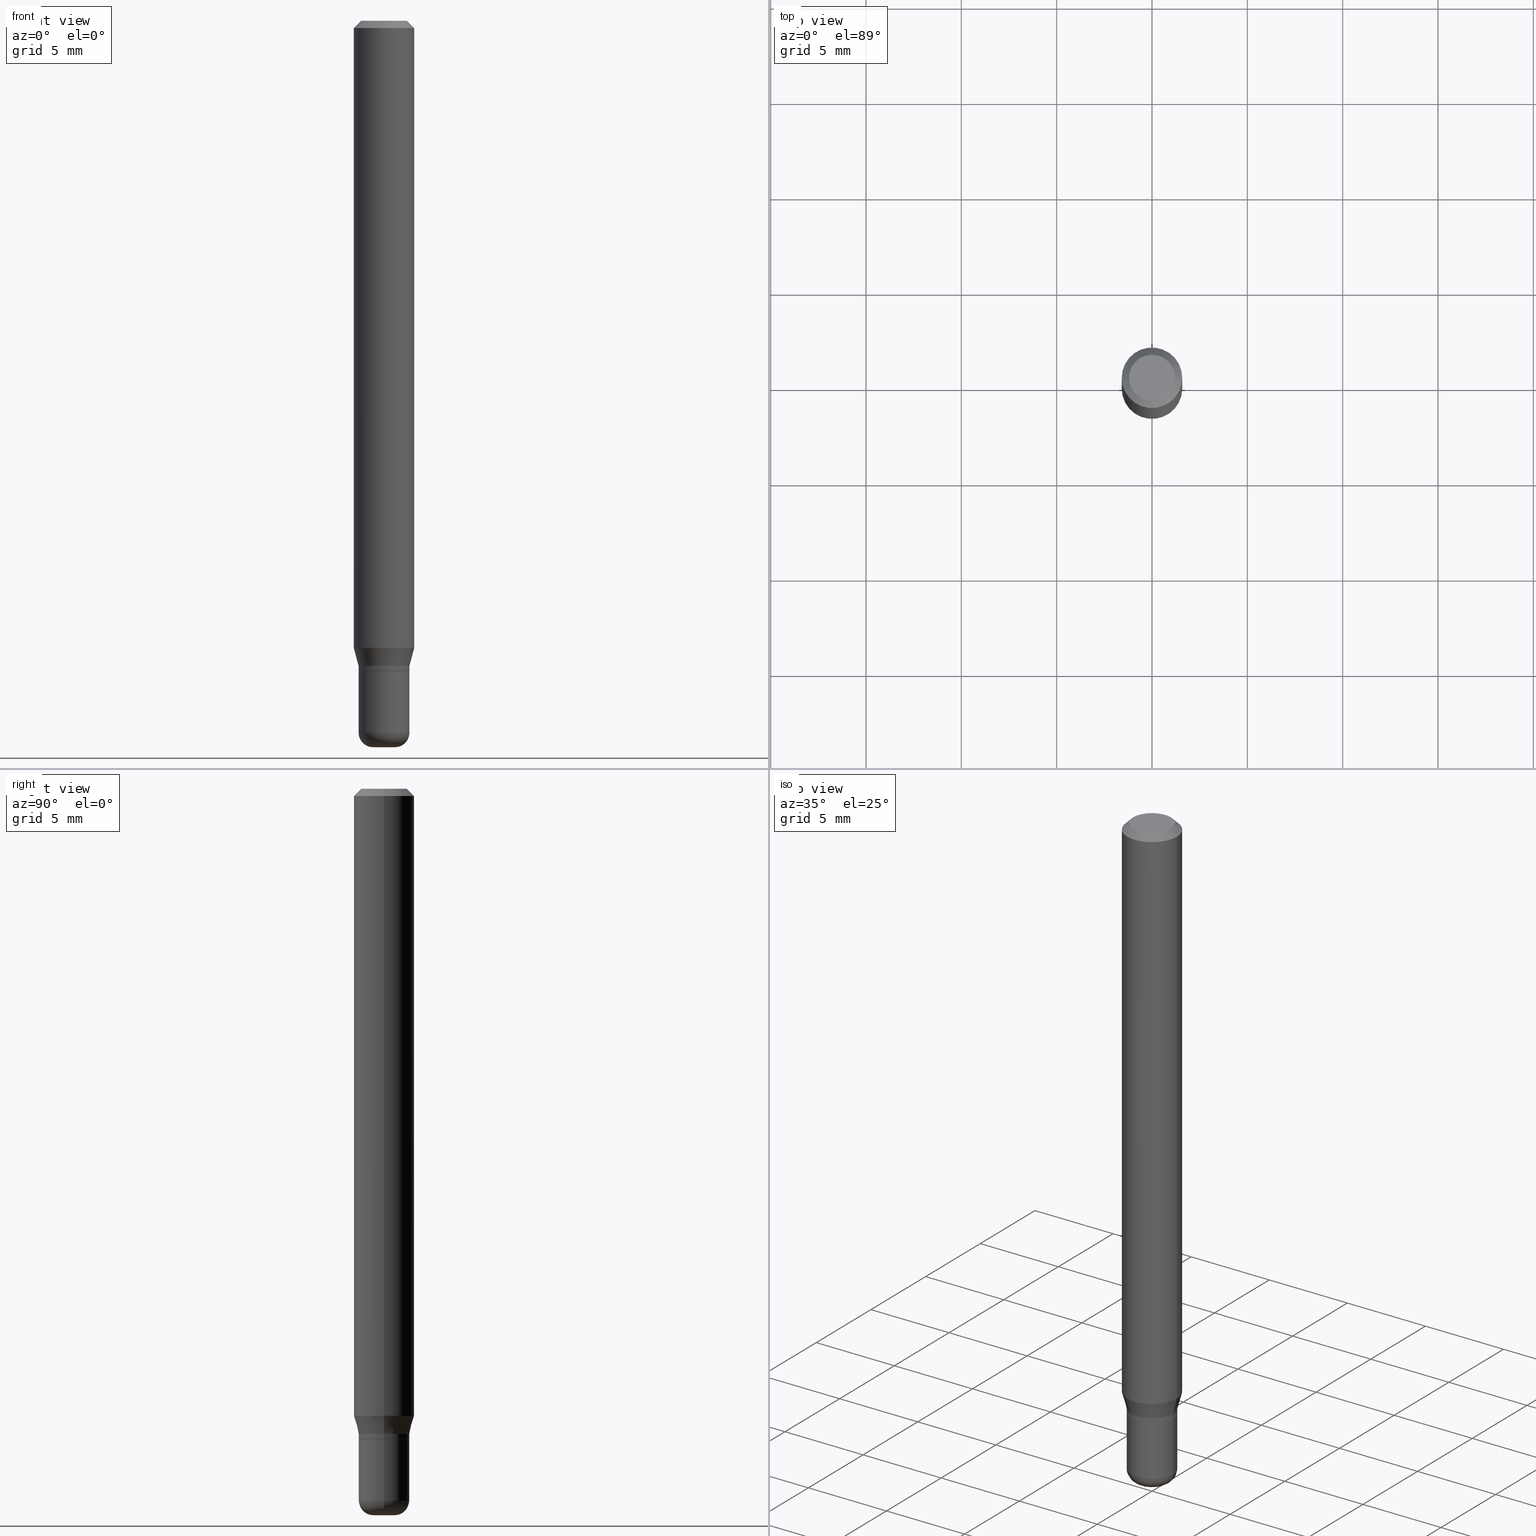
[diagram: canonical four-view strip — front | top / right | iso, engineering-drawing reading convention]
A machine part, canonical four-view strip (front | top / right | iso — engineering-drawing reading convention). The complete STEP part file that produces these views, byte-faithful:
ISO-10303-21;
HEADER;
FILE_DESCRIPTION (( 'STEP AP203' ),
    '1' );
FILE_NAME ('09234.STEP',
    '2024-02-29T23:46:39',
    ( '' ),
    ( '' ),
    'SwSTEP 2.0',
    'SolidWorks 2023',
    '' );
FILE_SCHEMA (( 'CONFIG_CONTROL_DESIGN' ));
ENDSEC;

DATA;
#1 =( CONVERSION_BASED_UNIT ( 'INCH', #270 ) LENGTH_UNIT ( ) NAMED_UNIT ( #393 ) );
#2 = ORIENTED_EDGE ( 'NONE', *, *, #513, .T. ) ;
#3 = VERTEX_POINT ( 'NONE', #451 ) ;
#4 = COORDINATED_UNIVERSAL_TIME_OFFSET ( 5, 0, .BEHIND. ) ;
#5 = AXIS2_PLACEMENT_3D ( 'NONE', #125, #397, #447 ) ;
#6 = VECTOR ( 'NONE', #514, 39.37007874015748143 ) ;
#7 = VERTEX_POINT ( 'NONE', #53 ) ;
#8 = DIRECTION ( 'NONE',  ( -2.445468806185136597E-29, 3.491481338843145583E-15, 1.000000000000000000 ) ) ;
#9 = VERTEX_POINT ( 'NONE', #137 ) ;
#10 = FACE_OUTER_BOUND ( 'NONE', #470, .T. ) ;
#11 = EDGE_CURVE ( 'NONE', #277, #3, #293, .T. ) ;
#12 = CIRCLE ( 'NONE', #60, 0.05250000000000007438 ) ;
#13 = ORIENTED_EDGE ( 'NONE', *, *, #227, .T. ) ;
#14 = FACE_OUTER_BOUND ( 'NONE', #317, .T. ) ;
#15 = DIRECTION ( 'NONE',  ( 1.000000000000000000, -6.982962677686266711E-15, 4.852736867747365086E-29 ) ) ;
#16 = AXIS2_PLACEMENT_3D ( 'NONE', #237, #26, #309 ) ;
#17 = AXIS2_PLACEMENT_3D ( 'NONE', #219, #375, #15 ) ;
#18 = VERTEX_POINT ( 'NONE', #504 ) ;
#19 = CARTESIAN_POINT ( 'NONE',  ( 0.06250000000000000000, -4.364351673553916694E-16, 3.047610484872459871E-30 ) ) ;
#20 = DIRECTION ( 'NONE',  ( 0.7071067811864267805, -2.468850131080992517E-15, 0.7071067811866682540 ) ) ;
#21 = CC_DESIGN_PERSON_AND_ORGANIZATION_ASSIGNMENT ( #109, #163, ( #220 ) ) ;
#22 = ORIENTED_EDGE ( 'NONE', *, *, #110, .T. ) ;
#23 = DIRECTION ( 'NONE',  ( 1.000000000000000000, 0.000000000000000000, 0.000000000000000000 ) ) ;
#24 = AXIS2_PLACEMENT_3D ( 'NONE', #360, #196, #421 ) ;
#25 = AXIS2_PLACEMENT_3D ( 'NONE', #389, #343, #508 ) ;
#26 = DIRECTION ( 'NONE',  ( 2.445468806185136597E-29, -3.491481338843145583E-15, -1.000000000000000000 ) ) ;
#27 = DIRECTION ( 'NONE',  ( 1.000000000000000000, -6.982962677686262766E-15, 0.000000000000000000 ) ) ;
#28 = DIRECTION ( 'NONE',  ( -2.445468806185136597E-29, 3.491481338843145583E-15, 1.000000000000000000 ) ) ;
#29 = PERSON_AND_ORGANIZATION ( #339, #378 ) ;
#30 = DIRECTION ( 'NONE',  ( -0.7071067811865479058, 2.468850131082261005E-15, -0.7071067811865471286 ) ) ;
#31 = DATE_AND_TIME ( #516, #335 ) ;
#32 = PLANE ( 'NONE',  #262 ) ;
#33 = VECTOR ( 'NONE', #479, 39.37007874015748143 ) ;
#34 = EDGE_CURVE ( 'NONE', #240, #9, #255, .T. ) ;
#35 = DIRECTION ( 'NONE',  ( 2.438088387897960049E-29, -3.491481338843145188E-15, -1.000000000000000000 ) ) ;
#36 = PERSON_AND_ORGANIZATION_ROLE ( 'classification_officer' ) ;
#37 = ORIENTED_EDGE ( 'NONE', *, *, #299, .T. ) ;
#38 = ORIENTED_EDGE ( 'NONE', *, *, #144, .F. ) ;
#39 = ADVANCED_FACE ( 'NONE', ( #437 ), #86, .T. ) ;
#40 = AXIS2_PLACEMENT_3D ( 'NONE', #340, #142, #99 ) ;
#41 = PRODUCT_DEFINITION ( 'UNKNOWN', '', #220, #217 ) ;
#42 = CARTESIAN_POINT ( 'NONE',  ( 0.02250000000000000264, -5.394338668512660598E-15, -1.500000000000000444 ) ) ;
#43 = PLANE ( 'NONE',  #244 ) ;
#44 = DIRECTION ( 'NONE',  ( 1.000000000000000000, -6.982962677686258033E-15, 0.000000000000000000 ) ) ;
#45 = EDGE_CURVE ( 'NONE', #3, #133, #436, .T. ) ;
#46 = CARTESIAN_POINT ( 'NONE',  ( -0.02249999999999999570, -4.972605452553402518E-15, -1.470000000000000195 ) ) ;
#47 = DIRECTION ( 'NONE',  ( -1.000000000000000000, 6.982962677686266711E-15, 0.000000000000000000 ) ) ;
#48 = ORIENTED_EDGE ( 'NONE', *, *, #506, .T. ) ;
#49 = FACE_OUTER_BOUND ( 'NONE', #296, .T. ) ;
#50 = CC_DESIGN_PERSON_AND_ORGANIZATION_ASSIGNMENT ( #203, #36, ( #148 ) ) ;
#51 = ORIENTED_EDGE ( 'NONE', *, *, #513, .F. ) ;
#52 = ORIENTED_EDGE ( 'NONE', *, *, #195, .F. ) ;
#53 = CARTESIAN_POINT ( 'NONE',  ( -0.04750000000000000749, 3.578768372314221353E-16, 2.731847993664239060E-16 ) ) ;
#54 = APPROVAL_DATE_TIME ( #149, #269 ) ;
#55 = APPLICATION_CONTEXT ( 'configuration controlled 3d designs of mechanical parts and assemblies' ) ;
#56 = ORIENTED_EDGE ( 'NONE', *, *, #403, .T. ) ;
#57 = EDGE_CURVE ( 'NONE', #89, #492, #319, .T. ) ;
#58 = CARTESIAN_POINT ( 'NONE',  ( 0.000000000000000000, 0.000000000000000000, 0.000000000000000000 ) ) ;
#59 = AXIS2_PLACEMENT_3D ( 'NONE', #58, #469, #377 ) ;
#60 = AXIS2_PLACEMENT_3D ( 'NONE', #430, #113, #191 ) ;
#61 = DIRECTION ( 'NONE',  ( 1.000000000000000000, -6.982962677686272233E-15, 0.000000000000000000 ) ) ;
#62 = LINE ( 'NONE', #19, #238 ) ;
#63 = ADVANCED_FACE ( 'NONE', ( #425 ), #68, .T. ) ;
#64 = DIRECTION ( 'NONE',  ( -2.445468806185136597E-29, 3.491481338843145583E-15, 1.000000000000000000 ) ) ;
#65 = COORDINATED_UNIVERSAL_TIME_OFFSET ( 5, 0, .BEHIND. ) ;
#66 = ORIENTED_EDGE ( 'NONE', *, *, #110, .F. ) ;
#67 = EDGE_CURVE ( 'NONE', #492, #157, #197, .T. ) ;
#68 = CYLINDRICAL_SURFACE ( 'NONE', #481, 0.05250000000000005357 ) ;
#69 = VECTOR ( 'NONE', #30, 39.37007874015748143 ) ;
#70 = DIRECTION ( 'NONE',  ( -2.445468806185136597E-29, 3.491481338843145583E-15, 1.000000000000000000 ) ) ;
#71 = CALENDAR_DATE ( 2024, 29, 2 ) ;
#72 = LINE ( 'NONE', #107, #33 ) ;
#73 = ORIENTED_EDGE ( 'NONE', *, *, #506, .F. ) ;
#74 = DATE_AND_TIME ( #312, #349 ) ;
#75 = EDGE_CURVE ( 'NONE', #18, #492, #445, .T. ) ;
#76 = SHAPE_DEFINITION_REPRESENTATION ( #130, #80 ) ;
#77 = ADVANCED_FACE ( 'NONE', ( #276 ), #441, .F. ) ;
#78 = AXIS2_PLACEMENT_3D ( 'NONE', #101, #333, #320 ) ;
#79 = DIRECTION ( 'NONE',  ( 2.438088387897960049E-29, -3.491481338843145188E-15, -1.000000000000000000 ) ) ;
#80 = ADVANCED_BREP_SHAPE_REPRESENTATION ( '09234', ( #151, #495, #307 ), #123 ) ;
#81 = CARTESIAN_POINT ( 'NONE',  ( 3.281819137900453057E-29, -4.685567956727500961E-15, -1.342000000000000082 ) ) ;
#82 = FACE_OUTER_BOUND ( 'NONE', #518, .T. ) ;
#83 = CARTESIAN_POINT ( 'NONE',  ( 3.281819137900453057E-29, -4.685567956727500961E-15, -1.342000000000000082 ) ) ;
#84 = DIRECTION ( 'NONE',  ( 7.105427357601001859E-15, 1.000000000000000000, -3.491481338843145583E-15 ) ) ;
#85 = DIRECTION ( 'NONE',  ( -2.445468806185136877E-29, 3.491481338843145188E-15, 1.000000000000000000 ) ) ;
#86 = CONICAL_SURFACE ( 'NONE', #16, 0.06250000000000000000, 0.7853981633974488341 ) ;
#87 = AXIS2_PLACEMENT_3D ( 'NONE', #81, #404, #440 ) ;
#88 = EDGE_CURVE ( 'NONE', #298, #18, #442, .T. ) ;
#89 = VERTEX_POINT ( 'NONE', #358 ) ;
#90 = EDGE_CURVE ( 'NONE', #289, #3, #409, .T. ) ;
#91 = DIRECTION ( 'NONE',  ( 1.000000000000000000, -6.982962677686265922E-15, 4.876176775795935793E-29 ) ) ;
#92 = AXIS2_PLACEMENT_3D ( 'NONE', #290, #252, #128 ) ;
#93 = ORIENTED_EDGE ( 'NONE', *, *, #406, .T. ) ;
#94 = DIRECTION ( 'NONE',  ( 1.000000000000000000, -6.982962677686260400E-15, 0.000000000000000000 ) ) ;
#95 = ADVANCED_FACE ( 'NONE', ( #154 ), #250, .T. ) ;
#96 = DIRECTION ( 'NONE',  ( -2.445468806185136597E-29, 3.491481338843145583E-15, 1.000000000000000000 ) ) ;
#97 = CARTESIAN_POINT ( 'NONE',  ( 0.05250000000000010908, -5.499083108677954756E-15, -1.470000000000000195 ) ) ;
#98 = APPLICATION_CONTEXT ( 'configuration controlled 3d designs of mechanical parts and assemblies' ) ;
#99 = DIRECTION ( 'NONE',  ( 1.000000000000000000, -6.982962677686274599E-15, 0.000000000000000000 ) ) ;
#100 = PERSON_AND_ORGANIZATION ( #339, #378 ) ;
#101 = CARTESIAN_POINT ( 'NONE',  ( 3.594839145092150820E-29, -5.132477568099424807E-15, -1.470000000000000195 ) ) ;
#102 = CLOSED_SHELL ( 'NONE', ( #126, #334, #484, #266, #284, #478, #391, #39, #234, #77, #259, #140 ) ) ;
#103 = CIRCLE ( 'NONE', #367, 0.04750000000000000749 ) ;
#104 = APPROVAL_PERSON_ORGANIZATION ( #352, #158, #355 ) ;
#105 = ORIENTED_EDGE ( 'NONE', *, *, #67, .T. ) ;
#106 = COORDINATED_UNIVERSAL_TIME_OFFSET ( 5, 0, .BEHIND. ) ;
#107 = CARTESIAN_POINT ( 'NONE',  ( -0.05200000000000005312, -4.316085734132249325E-15, -1.342000000000000082 ) ) ;
#108 = CIRCLE ( 'NONE', #173, 0.02250000000000000264 ) ;
#109 = PERSON_AND_ORGANIZATION ( #339, #378 ) ;
#110 = EDGE_CURVE ( 'NONE', #161, #497, #385, .T. ) ;
#111 = COORDINATED_UNIVERSAL_TIME_OFFSET ( 5, 0, .BEHIND. ) ;
#112 = CARTESIAN_POINT ( 'NONE',  ( 3.666055405785617499E-16, 0.05249999999999530736, -1.342000000000000304 ) ) ;
#113 = DIRECTION ( 'NONE',  ( -2.445468806185136597E-29, 3.491481338843145583E-15, 1.000000000000000000 ) ) ;
#114 = VECTOR ( 'NONE', #202, 39.37007874015748143 ) ;
#115 = EDGE_CURVE ( 'NONE', #497, #298, #304, .T. ) ;
#116 = CONICAL_SURFACE ( 'NONE', #410, 0.06250000000000000000, 0.7853981633974488341 ) ;
#117 = EDGE_LOOP ( 'NONE', ( #485, #56 ) ) ;
#118 = DIRECTION ( 'NONE',  ( 1.000000000000000000, -6.982962677686266711E-15, 0.000000000000000000 ) ) ;
#119 = ORIENTED_EDGE ( 'NONE', *, *, #272, .T. ) ;
#120 = PRODUCT_RELATED_PRODUCT_CATEGORY ( 'detail', '', ( #218 ) ) ;
#121 = DIRECTION ( 'NONE',  ( 1.000000000000000000, -6.982962677686269866E-15, 0.000000000000000000 ) ) ;
#122 = DIRECTION ( 'NONE',  ( 2.445468806185136597E-29, -3.491481338843145583E-15, -1.000000000000000000 ) ) ;
#123 =( GEOMETRIC_REPRESENTATION_CONTEXT ( 3 ) GLOBAL_UNCERTAINTY_ASSIGNED_CONTEXT ( ( #490 ) ) GLOBAL_UNIT_ASSIGNED_CONTEXT ( ( #1, #476, #467 ) ) REPRESENTATION_CONTEXT ( 'NONE', 'WORKASPACE' ) );
#124 = CIRCLE ( 'NONE', #40, 0.03000000000000010991 ) ;
#125 = CARTESIAN_POINT ( 'NONE',  ( 3.281819137900453057E-29, -4.685567956727500961E-15, -1.342000000000000082 ) ) ;
#126 = ADVANCED_FACE ( 'NONE', ( #186 ), #345, .T. ) ;
#127 = CARTESIAN_POINT ( 'NONE',  ( -6.680649051745406845E-45, 9.538196290434862081E-31, 2.731847993664263218E-16 ) ) ;
#128 = DIRECTION ( 'NONE',  ( 1.000000000000000000, -6.982962677686258033E-15, 0.000000000000000000 ) ) ;
#129 = ORIENTED_EDGE ( 'NONE', *, *, #67, .F. ) ;
#130 = PRODUCT_DEFINITION_SHAPE ( 'NONE', 'NONE',  #41 ) ;
#131 = DIRECTION ( 'NONE',  ( -2.445468806185136597E-29, 3.491481338843145583E-15, 1.000000000000000000 ) ) ;
#132 = ORIENTED_EDGE ( 'NONE', *, *, #88, .T. ) ;
#133 = VERTEX_POINT ( 'NONE', #387 ) ;
#134 = ORIENTED_EDGE ( 'NONE', *, *, #299, .F. ) ;
#135 = CARTESIAN_POINT ( 'NONE',  ( 0.000000000000000000, 0.000000000000000000, 0.000000000000000000 ) ) ;
#136 = ADVANCED_FACE ( 'NONE', ( #472 ), #223, .T. ) ;
#137 = CARTESIAN_POINT ( 'NONE',  ( 0.06250000000000000000, -4.888073874380378612E-16, -0.01499999999999970281 ) ) ;
#138 = EDGE_LOOP ( 'NONE', ( #52, #66 ) ) ;
#139 = DIRECTION ( 'NONE',  ( -2.445468806185136597E-29, 3.491481338843145583E-15, 1.000000000000000000 ) ) ;
#140 = ADVANCED_FACE ( 'NONE', ( #379 ), #256, .T. ) ;
#141 = ORIENTED_EDGE ( 'NONE', *, *, #88, .F. ) ;
#142 = DIRECTION ( 'NONE',  ( -6.982962677686266711E-15, -1.000000000000000000, 3.491481338843145583E-15 ) ) ;
#143 = DIRECTION ( 'NONE',  ( -2.445468806185136877E-29, 3.491481338843145188E-15, 1.000000000000000000 ) ) ;
#144 = EDGE_CURVE ( 'NONE', #9, #374, #356, .T. ) ;
#145 = DIRECTION ( 'NONE',  ( -2.445468806185136597E-29, 3.491481338843145583E-15, 1.000000000000000000 ) ) ;
#146 = ORIENTED_EDGE ( 'NONE', *, *, #406, .F. ) ;
#147 = ORIENTED_EDGE ( 'NONE', *, *, #11, .F. ) ;
#148 = SECURITY_CLASSIFICATION ( '', '', #512 ) ;
#149 = DATE_AND_TIME ( #190, #171 ) ;
#150 = MECHANICAL_CONTEXT ( 'NONE', #55, 'mechanical' ) ;
#151 = MANIFOLD_SOLID_BREP ( 'Body-Move/Copy2[1]', #192 ) ;
#152 = PERSON_AND_ORGANIZATION_ROLE ( 'creator' ) ;
#153 = ORIENTED_EDGE ( 'NONE', *, *, #144, .T. ) ;
#154 = FACE_OUTER_BOUND ( 'NONE', #428, .T. ) ;
#155 = CIRCLE ( 'NONE', #507, 0.06250000000000000000 ) ;
#156 = ORIENTED_EDGE ( 'NONE', *, *, #303, .F. ) ;
#157 = VERTEX_POINT ( 'NONE', #267 ) ;
#158 = APPROVAL ( #271, 'UNSPECIFIED' ) ;
#159 = DIRECTION ( 'NONE',  ( -2.445468806185136877E-29, 3.491481338843145188E-15, 1.000000000000000000 ) ) ;
#160 = CARTESIAN_POINT ( 'NONE',  ( 0.04750000000000000749, -4.035134999187568762E-16, 2.731847993664288856E-16 ) ) ;
#161 = VERTEX_POINT ( 'NONE', #260 ) ;
#162 = AXIS2_PLACEMENT_3D ( 'NONE', #83, #70, #194 ) ;
#163 = PERSON_AND_ORGANIZATION_ROLE ( 'design_supplier' ) ;
#164 = CIRCLE ( 'NONE', #78, 0.05250000000000010908 ) ;
#165 = CYLINDRICAL_SURFACE ( 'NONE', #517, 0.05250000000000005357 ) ;
#166 = ORIENTED_EDGE ( 'NONE', *, *, #195, .T. ) ;
#167 = PLANE ( 'NONE',  #214 ) ;
#168 = ORIENTED_EDGE ( 'NONE', *, *, #45, .T. ) ;
#169 = ORIENTED_EDGE ( 'NONE', *, *, #204, .T. ) ;
#170 = CARTESIAN_POINT ( 'NONE',  ( 3.281819137900453057E-29, -4.685567956727500961E-15, -1.342000000000000082 ) ) ;
#171 = LOCAL_TIME ( 18, 46, 39.00000000000000000, #65 ) ;
#172 = VECTOR ( 'NONE', #159, 39.37007874015748143 ) ;
#173 = AXIS2_PLACEMENT_3D ( 'NONE', #206, #353, #363 ) ;
#174 = EDGE_CURVE ( 'NONE', #291, #9, #62, .T. ) ;
#175 = ORIENTED_EDGE ( 'NONE', *, *, #412, .T. ) ;
#176 = LINE ( 'NONE', #454, #474 ) ;
#177 = EDGE_LOOP ( 'NONE', ( #370, #168, #278, #146 ) ) ;
#178 = DIRECTION ( 'NONE',  ( 1.000000000000000000, -6.982962677686266711E-15, 4.876176775795935793E-29 ) ) ;
#179 = AXIS2_PLACEMENT_3D ( 'NONE', #423, #64, #228 ) ;
#180 = APPROVAL_PERSON_ORGANIZATION ( #235, #480, #427 ) ;
#181 = DIRECTION ( 'NONE',  ( -2.445468806185136877E-29, 3.491481338843145188E-15, 1.000000000000000000 ) ) ;
#182 = ORIENTED_EDGE ( 'NONE', *, *, #412, .F. ) ;
#183 = FACE_OUTER_BOUND ( 'NONE', #251, .T. ) ;
#184 = EDGE_CURVE ( 'NONE', #489, #277, #124, .T. ) ;
#185 = CARTESIAN_POINT ( 'NONE',  ( 0.06250000000000000000, -4.811533449433669144E-16, -0.01499999999999970281 ) ) ;
#186 = FACE_OUTER_BOUND ( 'NONE', #313, .T. ) ;
#187 = ORIENTED_EDGE ( 'NONE', *, *, #365, .T. ) ;
#188 = CYLINDRICAL_SURFACE ( 'NONE', #386, 0.06250000000000000000 ) ;
#189 = EDGE_CURVE ( 'NONE', #291, #157, #394, .T. ) ;
#190 = CALENDAR_DATE ( 2024, 29, 2 ) ;
#191 = DIRECTION ( 'NONE',  ( 1.000000000000000000, -6.982962677686258033E-15, 0.000000000000000000 ) ) ;
#192 = CLOSED_SHELL ( 'NONE', ( #136, #63, #383, #263, #95, #502 ) ) ;
#193 = CIRCLE ( 'NONE', #25, 0.05250000000000005357 ) ;
#194 = DIRECTION ( 'NONE',  ( 1.000000000000000000, -6.982962677686269866E-15, 0.000000000000000000 ) ) ;
#195 = EDGE_CURVE ( 'NONE', #497, #161, #208, .T. ) ;
#196 = DIRECTION ( 'NONE',  ( -2.445468806185136597E-29, 3.491481338843145583E-15, 1.000000000000000000 ) ) ;
#197 = LINE ( 'NONE', #347, #6 ) ;
#198 = CC_DESIGN_DATE_AND_TIME_ASSIGNMENT ( #74, #273, ( #148 ) ) ;
#199 = ORIENTED_EDGE ( 'NONE', *, *, #115, .F. ) ;
#200 = AXIS2_PLACEMENT_3D ( 'NONE', #213, #297, #94 ) ;
#201 = ORIENTED_EDGE ( 'NONE', *, *, #34, .F. ) ;
#202 = DIRECTION ( 'NONE',  ( 0.7071067811865479058, -7.319954787623257623E-15, -0.7071067811865471286 ) ) ;
#203 = PERSON_AND_ORGANIZATION ( #339, #378 ) ;
#204 = EDGE_CURVE ( 'NONE', #161, #89, #72, .T. ) ;
#205 = ORIENTED_EDGE ( 'NONE', *, *, #229, .F. ) ;
#206 = CARTESIAN_POINT ( 'NONE',  ( 3.668203209277706016E-29, -5.237222008264719754E-15, -1.500000000000000444 ) ) ;
#207 = CALENDAR_DATE ( 2024, 29, 2 ) ;
#208 = CIRCLE ( 'NONE', #494, 0.05200000000000005312 ) ;
#209 = DIRECTION ( 'NONE',  ( -2.445468806185136597E-29, 3.491481338843145583E-15, 1.000000000000000000 ) ) ;
#210 = DIRECTION ( 'NONE',  ( -1.000000000000000000, 6.982962677686265922E-15, -4.876176775795935793E-29 ) ) ;
#211 = CC_DESIGN_PERSON_AND_ORGANIZATION_ASSIGNMENT ( #265, #458, ( #41 ) ) ;
#212 = ORIENTED_EDGE ( 'NONE', *, *, #174, .T. ) ;
#213 = CARTESIAN_POINT ( 'NONE',  ( 3.280596403497360256E-29, -4.683822216058079457E-15, -1.341499999999999915 ) ) ;
#214 = AXIS2_PLACEMENT_3D ( 'NONE', #246, #402, #91 ) ;
#215 = EDGE_CURVE ( 'NONE', #492, #18, #12, .T. ) ;
#216 = CARTESIAN_POINT ( 'NONE',  ( 3.668203209277706016E-29, -5.237222008264719754E-15, -1.500000000000000444 ) ) ;
#217 = DESIGN_CONTEXT ( 'detailed design', #98, 'design' ) ;
#218 = PRODUCT ( '09234', '09234', '', ( #150 ) ) ;
#219 = CARTESIAN_POINT ( 'NONE',  ( -6.680649051745406845E-45, 9.538196290434862081E-31, 2.731847993664263218E-16 ) ) ;
#220 = PRODUCT_DEFINITION_FORMATION_WITH_SPECIFIED_SOURCE ( 'ANY', '', #218, .NOT_KNOWN. ) ;
#221 = PERSON_AND_ORGANIZATION ( #339, #378 ) ;
#222 = ORIENTED_EDGE ( 'NONE', *, *, #204, .F. ) ;
#223 = TOROIDAL_SURFACE ( 'NONE', #281, 0.02249999999999999570, 0.03000000000000011685 ) ;
#224 = CIRCLE ( 'NONE', #314, 0.02250000000000000264 ) ;
#225 = DIRECTION ( 'NONE',  ( 1.000000000000000000, -6.982962677686267499E-15, 4.876176775795936353E-29 ) ) ;
#226 = ORIENTED_EDGE ( 'NONE', *, *, #456, .T. ) ;
#227 = EDGE_CURVE ( 'NONE', #275, #133, #417, .T. ) ;
#228 = DIRECTION ( 'NONE',  ( 1.000000000000000000, -6.982962677686268288E-15, 0.000000000000000000 ) ) ;
#229 = EDGE_CURVE ( 'NONE', #89, #298, #193, .T. ) ;
#230 = AXIS2_PLACEMENT_3D ( 'NONE', #170, #131, #285 ) ;
#231 = DIRECTION ( 'NONE',  ( -2.445468806185136877E-29, 3.491481338843145188E-15, 1.000000000000000000 ) ) ;
#232 = DATE_AND_TIME ( #71, #325 ) ;
#233 = DIRECTION ( 'NONE',  ( 1.000000000000000000, -6.982962677686266711E-15, 4.876176775795936353E-29 ) ) ;
#234 = ADVANCED_FACE ( 'NONE', ( #439 ), #43, .F. ) ;
#235 = PERSON_AND_ORGANIZATION ( #339, #378 ) ;
#236 = AXIS2_PLACEMENT_3D ( 'NONE', #457, #96, #61 ) ;
#237 = CARTESIAN_POINT ( 'NONE',  ( 3.668203209277632395E-31, -5.237222008264614861E-17, -0.01499999999999970281 ) ) ;
#238 = VECTOR ( 'NONE', #181, 39.37007874015748143 ) ;
#239 = EDGE_CURVE ( 'NONE', #289, #489, #108, .T. ) ;
#240 = VERTEX_POINT ( 'NONE', #160 ) ;
#241 = FACE_OUTER_BOUND ( 'NONE', #292, .T. ) ;
#242 = DIRECTION ( 'NONE',  ( -1.000000000000000000, 6.982962677686265922E-15, -4.876176775795935793E-29 ) ) ;
#243 = EDGE_LOOP ( 'NONE', ( #201, #328, #2, #226 ) ) ;
#244 = AXIS2_PLACEMENT_3D ( 'NONE', #279, #79, #242 ) ;
#245 = CARTESIAN_POINT ( 'NONE',  ( 3.668203209277632395E-31, -5.237222008264614861E-17, -0.01499999999999970281 ) ) ;
#246 = CARTESIAN_POINT ( 'NONE',  ( 3.582686580359767159E-29, -5.359686688179454114E-15, -1.500000000000000444 ) ) ;
#247 = CARTESIAN_POINT ( 'NONE',  ( 0.05250000000000006051, -3.666055405785294559E-16, 2.559992807292869514E-30 ) ) ;
#248 = CARTESIAN_POINT ( 'NONE',  ( 0.000000000000000000, 0.000000000000000000, 0.000000000000000000 ) ) ;
#249 = ORIENTED_EDGE ( 'NONE', *, *, #272, .F. ) ;
#250 = TOROIDAL_SURFACE ( 'NONE', #24, 0.02249999999999999570, 0.03000000000000011685 ) ;
#251 = EDGE_LOOP ( 'NONE', ( #459, #119, #38, #344 ) ) ;
#252 = DIRECTION ( 'NONE',  ( -2.445468806185136597E-29, 3.491481338843145583E-15, 1.000000000000000000 ) ) ;
#253 = CIRCLE ( 'NONE', #295, 0.06250000000000000000 ) ;
#254 = DIRECTION ( 'NONE',  ( -2.445468806185136597E-29, 3.491481338843145583E-15, 1.000000000000000000 ) ) ;
#255 = LINE ( 'NONE', #185, #114 ) ;
#256 = CYLINDRICAL_SURFACE ( 'NONE', #59, 0.05250000000000006051 ) ;
#257 = EDGE_LOOP ( 'NONE', ( #166, #169, #134, #199 ) ) ;
#258 = CARTESIAN_POINT ( 'NONE',  ( 0.05250000000000007438, -5.017258683917600838E-15, -1.332000000000000517 ) ) ;
#259 = ADVANCED_FACE ( 'NONE', ( #321 ), #348, .T. ) ;
#260 = CARTESIAN_POINT ( 'NONE',  ( -0.05200000000000005312, -4.313436506958137335E-15, -1.342000000000000082 ) ) ;
#261 = ORIENTED_EDGE ( 'NONE', *, *, #350, .F. ) ;
#262 = AXIS2_PLACEMENT_3D ( 'NONE', #112, #35, #210 ) ;
#263 = ADVANCED_FACE ( 'NONE', ( #241 ), #165, .T. ) ;
#264 = ORIENTED_EDGE ( 'NONE', *, *, #456, .F. ) ;
#265 = PERSON_AND_ORGANIZATION ( #339, #378 ) ;
#266 = ADVANCED_FACE ( 'NONE', ( #183 ), #188, .T. ) ;
#267 = CARTESIAN_POINT ( 'NONE',  ( -0.06250000000000000000, -4.076260075986598044E-15, -1.294679491924312087 ) ) ;
#268 = APPROVAL_STATUS ( 'not_yet_approved' ) ;
#269 = APPROVAL ( #419, 'UNSPECIFIED' ) ;
#270 = LENGTH_MEASURE_WITH_UNIT ( LENGTH_MEASURE( 0.02539999999999999897 ), #351 );
#271 = APPROVAL_STATUS ( 'not_yet_approved' ) ;
#272 = EDGE_CURVE ( 'NONE', #157, #374, #176, .T. ) ;
#273 = DATE_TIME_ROLE ( 'classification_date' ) ;
#274 = AXIS2_PLACEMENT_3D ( 'NONE', #418, #505, #286 ) ;
#275 = VERTEX_POINT ( 'NONE', #407 ) ;
#276 = FACE_OUTER_BOUND ( 'NONE', #138, .T. ) ;
#277 = VERTEX_POINT ( 'NONE', #97 ) ;
#278 = ORIENTED_EDGE ( 'NONE', *, *, #227, .F. ) ;
#279 = CARTESIAN_POINT ( 'NONE',  ( 3.316907271900976589E-16, 0.04750000000000000749, -2.925296391183627249E-17 ) ) ;
#280 = DIRECTION ( 'NONE',  ( -2.445468806185136597E-29, 3.491481338843145583E-15, 1.000000000000000000 ) ) ;
#281 = AXIS2_PLACEMENT_3D ( 'NONE', #414, #384, #499 ) ;
#282 = CONICAL_SURFACE ( 'NONE', #357, 0.05200000000000005312, 0.7853981633972775267 ) ;
#283 = CARTESIAN_POINT ( 'NONE',  ( 0.05200000000000005312, -5.048682015967187903E-15, -1.342000000000000082 ) ) ;
#284 = ADVANCED_FACE ( 'NONE', ( #49 ), #466, .T. ) ;
#285 = DIRECTION ( 'NONE',  ( 1.000000000000000000, -6.982962677686268288E-15, 0.000000000000000000 ) ) ;
#286 = DIRECTION ( 'NONE',  ( 1.000000000000000000, -6.982962677686262766E-15, 0.000000000000000000 ) ) ;
#287 = CARTESIAN_POINT ( 'NONE',  ( -0.02250000000000000264, -4.918396262272034080E-15, -1.500000000000000444 ) ) ;
#288 = CARTESIAN_POINT ( 'NONE',  ( -0.05250000000000007438, -4.176939141525808200E-15, -1.332000000000000517 ) ) ;
#289 = VERTEX_POINT ( 'NONE', #287 ) ;
#290 = CARTESIAN_POINT ( 'NONE',  ( 3.257364449838602633E-29, -4.650653143339071678E-15, -1.332000000000000517 ) ) ;
#291 = VERTEX_POINT ( 'NONE', #337 ) ;
#292 = EDGE_LOOP ( 'NONE', ( #453, #187, #93, #182 ) ) ;
#293 = CIRCLE ( 'NONE', #236, 0.05250000000000010908 ) ;
#294 = ORIENTED_EDGE ( 'NONE', *, *, #403, .F. ) ;
#295 = AXIS2_PLACEMENT_3D ( 'NONE', #511, #468, #27 ) ;
#296 = EDGE_LOOP ( 'NONE', ( #433, #105, #408, #261 ) ) ;
#297 = DIRECTION ( 'NONE',  ( -2.445468806185136597E-29, 3.491481338843145583E-15, 1.000000000000000000 ) ) ;
#298 = VERTEX_POINT ( 'NONE', #302 ) ;
#299 = EDGE_CURVE ( 'NONE', #298, #89, #332, .T. ) ;
#300 = ORIENTED_EDGE ( 'NONE', *, *, #90, .T. ) ;
#301 = PERSON_AND_ORGANIZATION_ROLE ( 'design_owner' ) ;
#302 = CARTESIAN_POINT ( 'NONE',  ( 0.05250000000000005357, -5.050427756636608617E-15, -1.341499999999999915 ) ) ;
#303 = EDGE_CURVE ( 'NONE', #489, #289, #224, .T. ) ;
#304 = LINE ( 'NONE', #336, #450 ) ;
#305 = VECTOR ( 'NONE', #231, 39.37007874015748143 ) ;
#306 = VECTOR ( 'NONE', #465, 39.37007874015748143 ) ;
#307 = AXIS2_PLACEMENT_3D ( 'NONE', #493, #424, #23 ) ;
#308 = CC_DESIGN_DATE_AND_TIME_ASSIGNMENT ( #232, #432, ( #41 ) ) ;
#309 = DIRECTION ( 'NONE',  ( -1.000000000000000000, 6.982962677686266711E-15, 0.000000000000000000 ) ) ;
#310 = FACE_OUTER_BOUND ( 'NONE', #473, .T. ) ;
#311 = CARTESIAN_POINT ( 'NONE',  ( 0.000000000000000000, 0.000000000000000000, 0.000000000000000000 ) ) ;
#312 = CALENDAR_DATE ( 2024, 29, 2 ) ;
#313 = EDGE_LOOP ( 'NONE', ( #37, #438, #338, #141 ) ) ;
#314 = AXIS2_PLACEMENT_3D ( 'NONE', #216, #254, #413 ) ;
#315 = CARTESIAN_POINT ( 'NONE',  ( 3.257364449838602633E-29, -4.650653143339071678E-15, -1.332000000000000517 ) ) ;
#316 = CARTESIAN_POINT ( 'NONE',  ( -0.06250000000000000000, 3.840629472727455270E-16, -0.01499999999999970281 ) ) ;
#317 = EDGE_LOOP ( 'NONE', ( #249, #48, #212, #264 ) ) ;
#318 = EDGE_CURVE ( 'NONE', #7, #240, #429, .T. ) ;
#319 = LINE ( 'NONE', #396, #305 ) ;
#320 = DIRECTION ( 'NONE',  ( 1.000000000000000000, -6.982962677686272233E-15, 0.000000000000000000 ) ) ;
#321 = FACE_OUTER_BOUND ( 'NONE', #371, .T. ) ;
#322 = DIRECTION ( 'NONE',  ( 1.000000000000000000, -6.982962677686266711E-15, 4.852736867747365086E-29 ) ) ;
#323 = ORIENTED_EDGE ( 'NONE', *, *, #229, .T. ) ;
#324 = ORIENTED_EDGE ( 'NONE', *, *, #365, .F. ) ;
#325 = LOCAL_TIME ( 18, 46, 39.00000000000000000, #106 ) ;
#326 = ORIENTED_EDGE ( 'NONE', *, *, #90, .F. ) ;
#327 = DIRECTION ( 'NONE',  ( 1.000000000000000000, -6.982962677686266711E-15, 4.876176775795935793E-29 ) ) ;
#328 = ORIENTED_EDGE ( 'NONE', *, *, #318, .F. ) ;
#329 = DIRECTION ( 'NONE',  ( -2.445468806185136597E-29, 3.491481338843145583E-15, 1.000000000000000000 ) ) ;
#330 = EDGE_LOOP ( 'NONE', ( #399, #300, #147, #509 ) ) ;
#331 = AXIS2_PLACEMENT_3D ( 'NONE', #46, #84, #361 ) ;
#332 = CIRCLE ( 'NONE', #200, 0.05250000000000005357 ) ;
#333 = DIRECTION ( 'NONE',  ( -2.445468806185136597E-29, 3.491481338843145583E-15, 1.000000000000000000 ) ) ;
#334 = ADVANCED_FACE ( 'NONE', ( #420 ), #282, .T. ) ;
#335 = LOCAL_TIME ( 18, 46, 39.00000000000000000, #390 ) ;
#336 = CARTESIAN_POINT ( 'NONE',  ( 0.05200000000000005312, -5.048682015967187903E-15, -1.342000000000000082 ) ) ;
#337 = CARTESIAN_POINT ( 'NONE',  ( 0.06250000000000000000, -4.956784453192051541E-15, -1.294679491924312087 ) ) ;
#338 = ORIENTED_EDGE ( 'NONE', *, *, #75, .F. ) ;
#339 = PERSON ( 'UNSPECIFIED', 'UNSPECIFIED', 'UNSPECIFIED', ('UNSPECIFIED'), ('UNSPECIFIED'), ('UNSPECIFIED') ) ;
#340 = CARTESIAN_POINT ( 'NONE',  ( 0.02249999999999999570, -5.289594228347365650E-15, -1.470000000000000195 ) ) ;
#341 = CARTESIAN_POINT ( 'NONE',  ( 0.000000000000000000, 0.000000000000000000, 0.000000000000000000 ) ) ;
#342 = CIRCLE ( 'NONE', #230, 0.05249999999999999806 ) ;
#343 = DIRECTION ( 'NONE',  ( -2.445468806185136597E-29, 3.491481338843145583E-15, 1.000000000000000000 ) ) ;
#344 = ORIENTED_EDGE ( 'NONE', *, *, #174, .F. ) ;
#345 = CYLINDRICAL_SURFACE ( 'NONE', #515, 0.05250000000000006051 ) ;
#346 = DATE_AND_TIME ( #207, #486 ) ;
#347 = CARTESIAN_POINT ( 'NONE',  ( -0.05250000000000007438, -4.277618207065018355E-15, -1.332000000000000517 ) ) ;
#348 = CONICAL_SURFACE ( 'NONE', #87, 0.05200000000000005312, 0.7853981633972775267 ) ;
#349 = LOCAL_TIME ( 18, 46, 39.00000000000000000, #111 ) ;
#350 = EDGE_CURVE ( 'NONE', #18, #291, #460, .T. ) ;
#351 =( LENGTH_UNIT ( ) NAMED_UNIT ( * ) SI_UNIT ( $, .METRE. ) );
#352 = PERSON_AND_ORGANIZATION ( #339, #378 ) ;
#353 = DIRECTION ( 'NONE',  ( -2.445468806185136597E-29, 3.491481338843145583E-15, 1.000000000000000000 ) ) ;
#354 = ORIENTED_EDGE ( 'NONE', *, *, #239, .F. ) ;
#355 = APPROVAL_ROLE ( '' ) ;
#356 = CIRCLE ( 'NONE', #452, 0.06250000000000000000 ) ;
#357 = AXIS2_PLACEMENT_3D ( 'NONE', #498, #139, #501 ) ;
#358 = CARTESIAN_POINT ( 'NONE',  ( -0.05250000000000005357, -4.310787279784026134E-15, -1.341499999999999915 ) ) ;
#359 = CARTESIAN_POINT ( 'NONE',  ( 3.668203209277632395E-31, -5.237222008264614861E-17, -0.01499999999999970281 ) ) ;
#360 = CARTESIAN_POINT ( 'NONE',  ( 3.594839145092150820E-29, -5.132477568099424807E-15, -1.470000000000000195 ) ) ;
#361 = DIRECTION ( 'NONE',  ( -1.000000000000000000, 7.105427357600997126E-15, 0.000000000000000000 ) ) ;
#362 = DIRECTION ( 'NONE',  ( 1.000000000000000000, -6.982962677686258033E-15, 0.000000000000000000 ) ) ;
#363 = DIRECTION ( 'NONE',  ( 1.000000000000000000, -6.982962677686267499E-15, 0.000000000000000000 ) ) ;
#364 = ORIENTED_EDGE ( 'NONE', *, *, #184, .T. ) ;
#365 = EDGE_CURVE ( 'NONE', #3, #277, #164, .T. ) ;
#366 = VECTOR ( 'NONE', #405, 39.37007874015748143 ) ;
#367 = AXIS2_PLACEMENT_3D ( 'NONE', #127, #443, #322 ) ;
#368 = CARTESIAN_POINT ( 'NONE',  ( 0.05250000000000005357, -3.666055405785293573E-16, 2.559992807292869164E-30 ) ) ;
#369 = CC_DESIGN_APPROVAL ( #269, ( #41 ) ) ;
#370 = ORIENTED_EDGE ( 'NONE', *, *, #11, .T. ) ;
#371 = EDGE_LOOP ( 'NONE', ( #222, #22, #500, #205 ) ) ;
#372 = CYLINDRICAL_SURFACE ( 'NONE', #400, 0.06250000000000000000 ) ;
#373 = ORIENTED_EDGE ( 'NONE', *, *, #215, .F. ) ;
#374 = VERTEX_POINT ( 'NONE', #477 ) ;
#375 = DIRECTION ( 'NONE',  ( -2.445468806185136597E-29, 3.491481338843145583E-15, 1.000000000000000000 ) ) ;
#376 = VECTOR ( 'NONE', #85, 39.37007874015748143 ) ;
#377 = DIRECTION ( 'NONE',  ( 1.000000000000000000, -6.982962677686267499E-15, 4.876176775795936353E-29 ) ) ;
#378 = ORGANIZATION ( 'UNSPECIFIED', 'UNSPECIFIED', '' ) ;
#379 = FACE_OUTER_BOUND ( 'NONE', #381, .T. ) ;
#380 = APPROVAL_ROLE ( '' ) ;
#381 = EDGE_LOOP ( 'NONE', ( #461, #323, #132, #373 ) ) ;
#382 = DIRECTION ( 'NONE',  ( -2.445468806185136597E-29, 3.491481338843145583E-15, 1.000000000000000000 ) ) ;
#383 = ADVANCED_FACE ( 'NONE', ( #310 ), #32, .F. ) ;
#384 = DIRECTION ( 'NONE',  ( -2.445468806185136597E-29, 3.491481338843145583E-15, 1.000000000000000000 ) ) ;
#385 = CIRCLE ( 'NONE', #162, 0.05200000000000005312 ) ;
#386 = AXIS2_PLACEMENT_3D ( 'NONE', #341, #382, #178 ) ;
#387 = CARTESIAN_POINT ( 'NONE',  ( -0.05249999999999999806, -4.535987826139409561E-15, -1.342000000000000082 ) ) ;
#388 = APPROVAL_DATE_TIME ( #346, #158 ) ;
#389 = CARTESIAN_POINT ( 'NONE',  ( 3.280596403497360256E-29, -4.683822216058079457E-15, -1.341499999999999915 ) ) ;
#390 = COORDINATED_UNIVERSAL_TIME_OFFSET ( 5, 0, .BEHIND. ) ;
#391 = ADVANCED_FACE ( 'NONE', ( #14 ), #372, .T. ) ;
#392 = APPROVAL_PERSON_ORGANIZATION ( #100, #269, #380 ) ;
#393 = DIMENSIONAL_EXPONENTS ( 1.000000000000000000, 0.000000000000000000, 0.000000000000000000, 0.000000000000000000, 0.000000000000000000, 0.000000000000000000, 0.000000000000000000 ) ;
#394 = CIRCLE ( 'NONE', #274, 0.06250000000000000000 ) ;
#395 = CARTESIAN_POINT ( 'NONE',  ( -0.05250000000000005357, 3.730349362740529782E-16, -2.582440922383828464E-30 ) ) ;
#396 = CARTESIAN_POINT ( 'NONE',  ( -0.05250000000000006051, 3.730349362740530275E-16, -2.582440922383828814E-30 ) ) ;
#397 = DIRECTION ( 'NONE',  ( -2.438088387897960049E-29, 3.491481338843145188E-15, 1.000000000000000000 ) ) ;
#398 = EDGE_LOOP ( 'NONE', ( #156, #354 ) ) ;
#399 = ORIENTED_EDGE ( 'NONE', *, *, #303, .T. ) ;
#400 = AXIS2_PLACEMENT_3D ( 'NONE', #248, #280, #327 ) ;
#401 = CARTESIAN_POINT ( 'NONE',  ( 3.257364449838602633E-29, -4.650653143339071678E-15, -1.332000000000000517 ) ) ;
#402 = DIRECTION ( 'NONE',  ( -2.438088387897960049E-29, 3.491481338843145188E-15, 1.000000000000000000 ) ) ;
#403 = EDGE_CURVE ( 'NONE', #240, #7, #103, .T. ) ;
#404 = DIRECTION ( 'NONE',  ( -2.445468806185136597E-29, 3.491481338843145583E-15, 1.000000000000000000 ) ) ;
#405 = DIRECTION ( 'NONE',  ( -2.445468806185136877E-29, 3.491481338843145188E-15, 1.000000000000000000 ) ) ;
#406 = EDGE_CURVE ( 'NONE', #277, #275, #483, .T. ) ;
#407 = CARTESIAN_POINT ( 'NONE',  ( 0.05249999999999999806, -5.052173497306030121E-15, -1.342000000000000082 ) ) ;
#408 = ORIENTED_EDGE ( 'NONE', *, *, #189, .F. ) ;
#409 = CIRCLE ( 'NONE', #331, 0.03000000000000010991 ) ;
#410 = AXIS2_PLACEMENT_3D ( 'NONE', #359, #122, #47 ) ;
#411 = CARTESIAN_POINT ( 'NONE',  ( 3.281819137900453057E-29, -4.685567956727500961E-15, -1.342000000000000082 ) ) ;
#412 = EDGE_CURVE ( 'NONE', #133, #275, #342, .T. ) ;
#413 = DIRECTION ( 'NONE',  ( 1.000000000000000000, -6.982962677686267499E-15, 0.000000000000000000 ) ) ;
#414 = CARTESIAN_POINT ( 'NONE',  ( 3.594839145092150820E-29, -5.132477568099424807E-15, -1.470000000000000195 ) ) ;
#415 = ORIENTED_EDGE ( 'NONE', *, *, #350, .T. ) ;
#416 = CC_DESIGN_SECURITY_CLASSIFICATION ( #148, ( #220 ) ) ;
#417 = CIRCLE ( 'NONE', #179, 0.05249999999999999806 ) ;
#418 = CARTESIAN_POINT ( 'NONE',  ( 3.166098311508526589E-29, -4.520349285836659871E-15, -1.294679491924312087 ) ) ;
#419 = APPROVAL_STATUS ( 'not_yet_approved' ) ;
#420 = FACE_OUTER_BOUND ( 'NONE', #257, .T. ) ;
#421 = DIRECTION ( 'NONE',  ( 1.000000000000000000, -6.982962677686272233E-15, 4.883557194083115143E-29 ) ) ;
#422 = CC_DESIGN_PERSON_AND_ORGANIZATION_ASSIGNMENT ( #29, #152, ( #220 ) ) ;
#423 = CARTESIAN_POINT ( 'NONE',  ( 3.281819137900453057E-29, -4.685567956727500961E-15, -1.342000000000000082 ) ) ;
#424 = DIRECTION ( 'NONE',  ( 0.000000000000000000, 0.000000000000000000, 1.000000000000000000 ) ) ;
#425 = FACE_OUTER_BOUND ( 'NONE', #177, .T. ) ;
#426 = AXIS2_PLACEMENT_3D ( 'NONE', #315, #475, #44 ) ;
#427 = APPROVAL_ROLE ( '' ) ;
#428 = EDGE_LOOP ( 'NONE', ( #326, #455, #364, #324 ) ) ;
#429 = CIRCLE ( 'NONE', #17, 0.04750000000000000749 ) ;
#430 = CARTESIAN_POINT ( 'NONE',  ( 3.257364449838602633E-29, -4.650653143339071678E-15, -1.332000000000000517 ) ) ;
#431 = DIRECTION ( 'NONE',  ( -2.445468806185136597E-29, 3.491481338843145583E-15, 1.000000000000000000 ) ) ;
#432 = DATE_TIME_ROLE ( 'creation_date' ) ;
#433 = ORIENTED_EDGE ( 'NONE', *, *, #75, .T. ) ;
#434 = LINE ( 'NONE', #316, #69 ) ;
#435 = APPROVAL_DATE_TIME ( #31, #480 ) ;
#436 = LINE ( 'NONE', #395, #172 ) ;
#437 = FACE_OUTER_BOUND ( 'NONE', #243, .T. ) ;
#438 = ORIENTED_EDGE ( 'NONE', *, *, #57, .T. ) ;
#439 = FACE_OUTER_BOUND ( 'NONE', #117, .T. ) ;
#440 = DIRECTION ( 'NONE',  ( 1.000000000000000000, -6.982962677686269866E-15, 0.000000000000000000 ) ) ;
#441 = PLANE ( 'NONE',  #5 ) ;
#442 = LINE ( 'NONE', #247, #366 ) ;
#443 = DIRECTION ( 'NONE',  ( -2.445468806185136597E-29, 3.491481338843145583E-15, 1.000000000000000000 ) ) ;
#444 = CC_DESIGN_APPROVAL ( #480, ( #148 ) ) ;
#445 = CIRCLE ( 'NONE', #426, 0.05250000000000007438 ) ;
#446 = CONICAL_SURFACE ( 'NONE', #482, 0.05250000000000007438, 0.2617993877991501850 ) ;
#447 = DIRECTION ( 'NONE',  ( 1.000000000000000000, -6.982962677686265922E-15, 4.876176775795935793E-29 ) ) ;
#448 = DIRECTION ( 'NONE',  ( 1.000000000000000000, -6.982962677686266711E-15, 4.876176775795936353E-29 ) ) ;
#449 = FACE_OUTER_BOUND ( 'NONE', #398, .T. ) ;
#450 = VECTOR ( 'NONE', #20, 39.37007874015748143 ) ;
#451 = CARTESIAN_POINT ( 'NONE',  ( -0.05250000000000009520, -4.535987826139408772E-15, -1.470000000000000195 ) ) ;
#452 = AXIS2_PLACEMENT_3D ( 'NONE', #510, #145, #463 ) ;
#453 = ORIENTED_EDGE ( 'NONE', *, *, #45, .F. ) ;
#454 = CARTESIAN_POINT ( 'NONE',  ( -0.06250000000000000000, 4.440892098500626162E-16, -3.074334431409316114E-30 ) ) ;
#455 = ORIENTED_EDGE ( 'NONE', *, *, #239, .T. ) ;
#456 = EDGE_CURVE ( 'NONE', #374, #9, #155, .T. ) ;
#457 = CARTESIAN_POINT ( 'NONE',  ( 3.594839145092150820E-29, -5.132477568099424807E-15, -1.470000000000000195 ) ) ;
#458 = PERSON_AND_ORGANIZATION_ROLE ( 'creator' ) ;
#459 = ORIENTED_EDGE ( 'NONE', *, *, #189, .T. ) ;
#460 = LINE ( 'NONE', #258, #306 ) ;
#461 = ORIENTED_EDGE ( 'NONE', *, *, #57, .F. ) ;
#462 = ORIENTED_EDGE ( 'NONE', *, *, #215, .T. ) ;
#463 = DIRECTION ( 'NONE',  ( 1.000000000000000000, -6.982962677686266711E-15, 0.000000000000000000 ) ) ;
#464 = APPLICATION_PROTOCOL_DEFINITION ( 'international standard', 'config_control_design', 1994, #98 ) ;
#465 = DIRECTION ( 'NONE',  ( 0.2588190451025214611, 1.565188264969620982E-15, 0.9659258262890679791 ) ) ;
#466 = CONICAL_SURFACE ( 'NONE', #92, 0.05250000000000007438, 0.2617993877991501850 ) ;
#467 =( NAMED_UNIT ( * ) SI_UNIT ( $, .STERADIAN. ) SOLID_ANGLE_UNIT ( ) );
#468 = DIRECTION ( 'NONE',  ( -2.445468806185136597E-29, 3.491481338843145583E-15, 1.000000000000000000 ) ) ;
#469 = DIRECTION ( 'NONE',  ( -2.445468806185136597E-29, 3.491481338843145583E-15, 1.000000000000000000 ) ) ;
#470 = EDGE_LOOP ( 'NONE', ( #294, #496, #153, #51 ) ) ;
#471 = CARTESIAN_POINT ( 'NONE',  ( 0.000000000000000000, 0.000000000000000000, 0.000000000000000000 ) ) ;
#472 = FACE_OUTER_BOUND ( 'NONE', #330, .T. ) ;
#473 = EDGE_LOOP ( 'NONE', ( #13, #175 ) ) ;
#474 = VECTOR ( 'NONE', #143, 39.37007874015748143 ) ;
#475 = DIRECTION ( 'NONE',  ( -2.445468806185136597E-29, 3.491481338843145583E-15, 1.000000000000000000 ) ) ;
#476 =( NAMED_UNIT ( * ) PLANE_ANGLE_UNIT ( ) SI_UNIT ( $, .RADIAN. ) );
#477 = CARTESIAN_POINT ( 'NONE',  ( -0.06250000000000000000, -1.842271543109590267E-15, -0.01499999999999970281 ) ) ;
#478 = ADVANCED_FACE ( 'NONE', ( #82 ), #446, .T. ) ;
#479 = DIRECTION ( 'NONE',  ( -0.7071067811864267805, 7.493145998869918709E-15, 0.7071067811866682540 ) ) ;
#480 = APPROVAL ( #268, 'UNSPECIFIED' ) ;
#481 = AXIS2_PLACEMENT_3D ( 'NONE', #471, #431, #233 ) ;
#482 = AXIS2_PLACEMENT_3D ( 'NONE', #401, #209, #362 ) ;
#483 = LINE ( 'NONE', #368, #376 ) ;
#484 = ADVANCED_FACE ( 'NONE', ( #10 ), #116, .T. ) ;
#485 = ORIENTED_EDGE ( 'NONE', *, *, #318, .T. ) ;
#486 = LOCAL_TIME ( 18, 46, 39.00000000000000000, #4 ) ;
#487 = CC_DESIGN_APPROVAL ( #158, ( #220 ) ) ;
#488 = DIRECTION ( 'NONE',  ( -2.445468806185136597E-29, 3.491481338843145583E-15, 1.000000000000000000 ) ) ;
#489 = VERTEX_POINT ( 'NONE', #42 ) ;
#490 = UNCERTAINTY_MEASURE_WITH_UNIT (LENGTH_MEASURE( 1.000000000000000082E-05 ), #1, 'distance_accuracy_value', 'NONE');
#491 = CC_DESIGN_PERSON_AND_ORGANIZATION_ASSIGNMENT ( #221, #301, ( #218 ) ) ;
#492 = VERTEX_POINT ( 'NONE', #288 ) ;
#493 = CARTESIAN_POINT ( 'NONE',  ( 0.000000000000000000, 0.000000000000000000, 0.000000000000000000 ) ) ;
#494 = AXIS2_PLACEMENT_3D ( 'NONE', #411, #8, #121 ) ;
#495 = MANIFOLD_SOLID_BREP ( 'Body-Move/Copy2[2]', #102 ) ;
#496 = ORIENTED_EDGE ( 'NONE', *, *, #34, .T. ) ;
#497 = VERTEX_POINT ( 'NONE', #283 ) ;
#498 = CARTESIAN_POINT ( 'NONE',  ( 3.281819137900453057E-29, -4.685567956727500961E-15, -1.342000000000000082 ) ) ;
#499 = DIRECTION ( 'NONE',  ( 1.000000000000000000, -6.982962677686272233E-15, 4.883557194083115143E-29 ) ) ;
#500 = ORIENTED_EDGE ( 'NONE', *, *, #115, .T. ) ;
#501 = DIRECTION ( 'NONE',  ( 1.000000000000000000, -6.982962677686269866E-15, 0.000000000000000000 ) ) ;
#502 = ADVANCED_FACE ( 'NONE', ( #449 ), #167, .F. ) ;
#503 = APPLICATION_PROTOCOL_DEFINITION ( 'international standard', 'config_control_design', 1994, #55 ) ;
#504 = CARTESIAN_POINT ( 'NONE',  ( 0.05250000000000007438, -5.017258683917600838E-15, -1.332000000000000517 ) ) ;
#505 = DIRECTION ( 'NONE',  ( -2.445468806185136597E-29, 3.491481338843145583E-15, 1.000000000000000000 ) ) ;
#506 = EDGE_CURVE ( 'NONE', #157, #291, #253, .T. ) ;
#507 = AXIS2_PLACEMENT_3D ( 'NONE', #245, #488, #118 ) ;
#508 = DIRECTION ( 'NONE',  ( 1.000000000000000000, -6.982962677686260400E-15, 0.000000000000000000 ) ) ;
#509 = ORIENTED_EDGE ( 'NONE', *, *, #184, .F. ) ;
#510 = CARTESIAN_POINT ( 'NONE',  ( 3.668203209277632395E-31, -5.237222008264614861E-17, -0.01499999999999970281 ) ) ;
#511 = CARTESIAN_POINT ( 'NONE',  ( 3.166098311508526589E-29, -4.520349285836659871E-15, -1.294679491924312087 ) ) ;
#512 = SECURITY_CLASSIFICATION_LEVEL ( 'unclassified' ) ;
#513 = EDGE_CURVE ( 'NONE', #7, #374, #434, .T. ) ;
#514 = DIRECTION ( 'NONE',  ( -0.2588190451025214611, 5.211531920934550253E-15, 0.9659258262890679791 ) ) ;
#515 = AXIS2_PLACEMENT_3D ( 'NONE', #311, #28, #225 ) ;
#516 = CALENDAR_DATE ( 2024, 29, 2 ) ;
#517 = AXIS2_PLACEMENT_3D ( 'NONE', #135, #329, #448 ) ;
#518 = EDGE_LOOP ( 'NONE', ( #129, #462, #415, #73 ) ) ;
ENDSEC;
END-ISO-10303-21;
